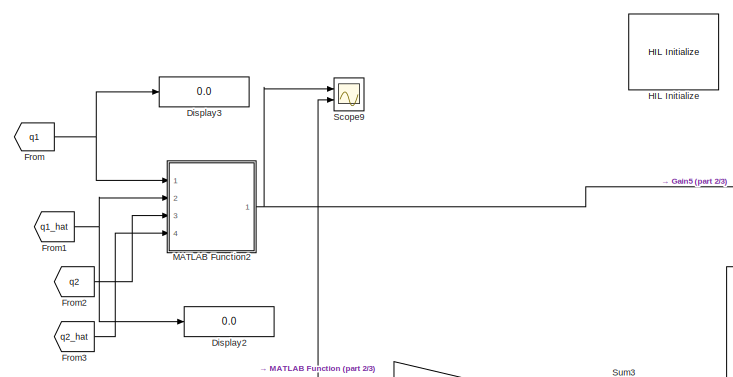
[diagram: root canvas - part 1/3, top left region]
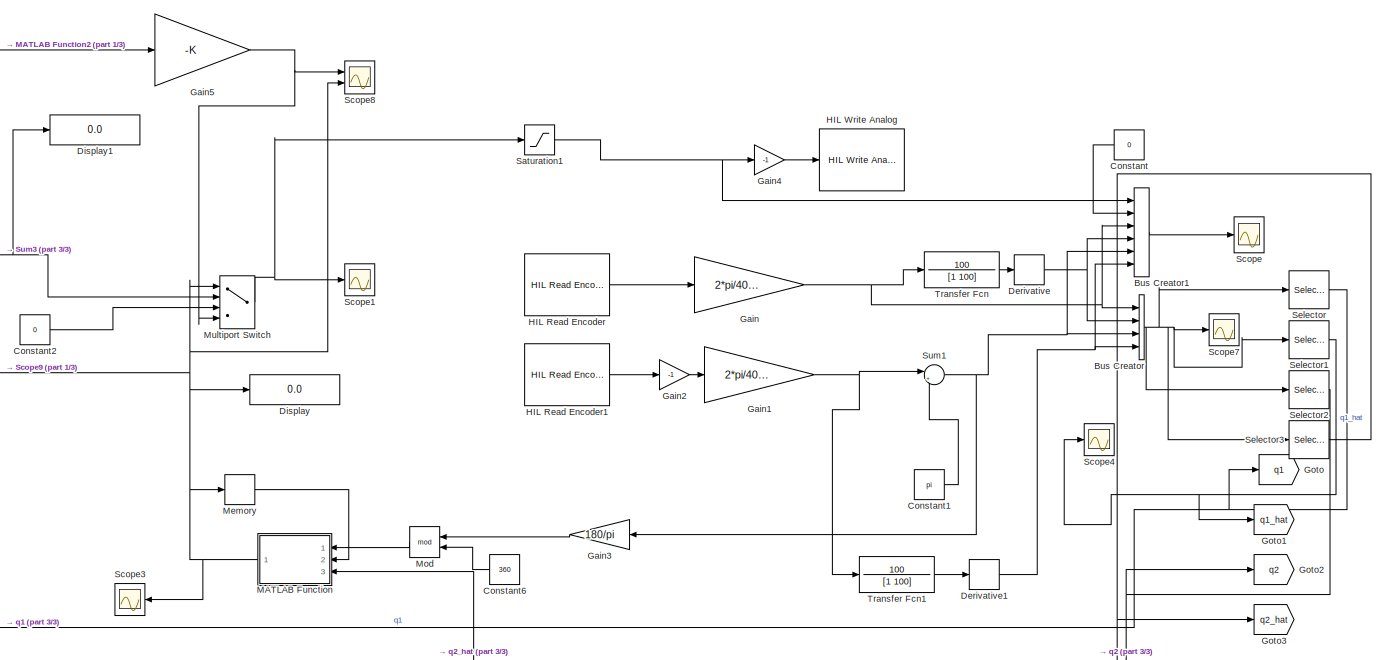
[diagram: root canvas - part 2/3, middle right region]
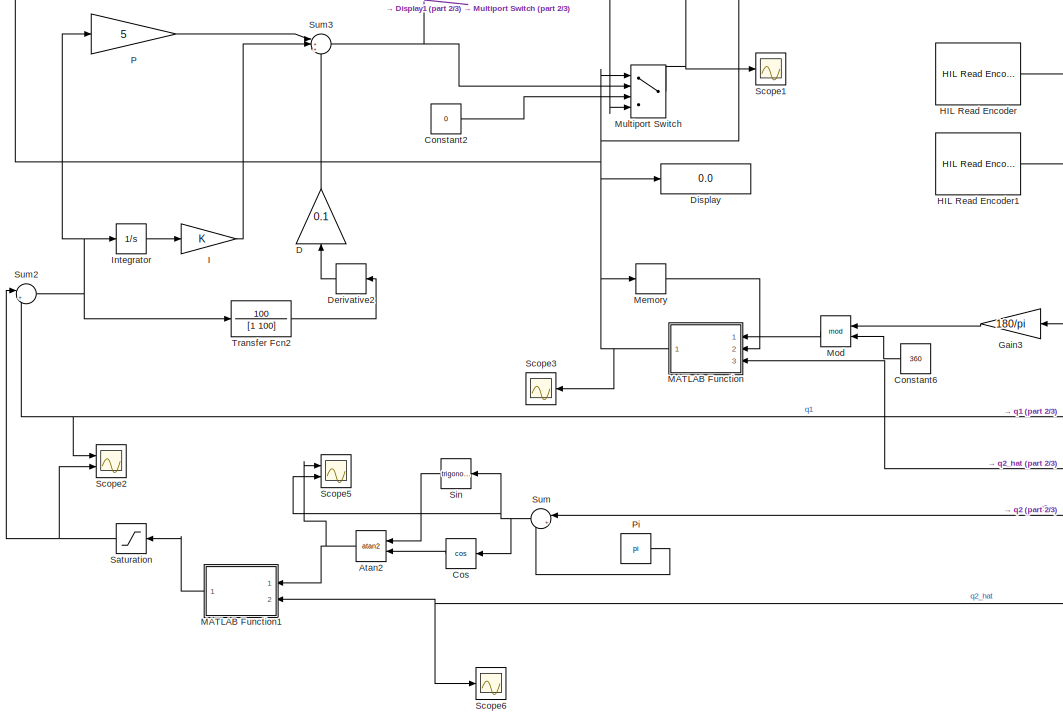
[diagram: root canvas - part 3/3, central region]
MODEL slx_17f5199e07ab
KIND model
CONFIG AbsTol = auto
CONFIG EnableMultiTasking = off
CONFIG FixedStep = 0.001
CONFIG MaxStep = auto
CONFIG MinStep = auto
CONFIG RelTol = 1e-3
CONFIG SampleTimeConstraint = Unconstrained
CONFIG SolverName = ode3
CONFIG StartTime = 0.0
CONFIG StopTime = 100
BLOCK [Trigonometry] Atan2
  Operator = atan2
  Ports = [2, 1]
BLOCK [BusCreator] Bus Creator
  DisplayOption = bar
  InheritFromInputs = on
  Inputs = 4
  Ports = [4, 1]
BLOCK [BusCreator] Bus Creator1
  DisplayOption = bar
  InheritFromInputs = on
  Inputs = 6
  Ports = [6, 1]
BLOCK [Constant] Constant
  Value = 0
BLOCK [Constant] Constant1
  Value = pi
BLOCK [Constant] Constant2
  Value = 0
BLOCK [Constant] Constant6
  Value = 360
BLOCK [Trigonometry] Cos
  Operator = cos
  Ports = [1, 1]
BLOCK [Gain] D
  Gain = 0.1
  NameLocation = left
BLOCK [Derivative] Derivative
BLOCK [Derivative] Derivative1
BLOCK [Derivative] Derivative2
BLOCK [Display] Display
  Decimation = 1
  Ports = [1]
BLOCK [Display] Display1
  Decimation = 1
  Ports = [1]
BLOCK [Display] Display2
  Decimation = 1
  Ports = [1]
BLOCK [Display] Display3
  Decimation = 1
  Ports = [1]
BLOCK [From] From
  GotoTag = q1
BLOCK [From] From1
  GotoTag = q1_hat
BLOCK [From] From2
  GotoTag = q2
BLOCK [From] From3
  GotoTag = q2_hat
BLOCK [Gain] Gain
  Gain = 2*pi/4096
BLOCK [Gain] Gain1
  Gain = 2*pi/4096
BLOCK [Gain] Gain2
  Gain = -1
BLOCK [Gain] Gain3
  Gain = 180/pi
BLOCK [Gain] Gain4
  Gain = -1
BLOCK [Gain] Gain5
  Gain = -K
  Multiplication = Matrix(K*u)
BLOCK [Goto] Goto
  GotoTag = q1
BLOCK [Goto] Goto1
  GotoTag = q1_hat
BLOCK [Goto] Goto2
  GotoTag = q2
BLOCK [Goto] Goto3
  GotoTag = q2_hat
BLOCK [Reference] HIL Initialize  REF=quarc_library/Data Acquisition/Generic/Configuration/HIL Initialize
  AttributesFormatString = %<object_name> (%<board_type>-%<board_number>)
  Ports = []
  SourceBlock = quarc_library/Data Acquisition/Generic/Configuration/HIL Initialize
  SourceProductName = QUARC Targets
  SourceType = HIL Initialize
  UserDataPersistent = on
BLOCK [Reference] HIL Read Encoder  REF=quarc_library/Data Acquisition/Generic/Immediate I//O/HIL Read Encoder
  AttributesFormatString = (%<object_name>)
  Ports = [0, 1]
  SourceBlock = quarc_library/Data Acquisition/Generic/Immediate I//O/HIL Read Encoder
  SourceProductName = QUARC Targets
  SourceType = HIL Read Encoder
  UserDataPersistent = on
BLOCK [Reference] HIL Read Encoder1  REF=quarc_library/Data Acquisition/Generic/Immediate I//O/HIL Read Encoder
  AttributesFormatString = (%<object_name>)
  Ports = [0, 1]
  SourceBlock = quarc_library/Data Acquisition/Generic/Immediate I//O/HIL Read Encoder
  SourceProductName = QUARC Targets
  SourceType = HIL Read Encoder
  UserDataPersistent = on
BLOCK [Reference] HIL Write Analog  REF=quarc_library/Data Acquisition/Generic/Immediate I//O/HIL Write Analog
  AttributesFormatString = (%<object_name>)
  Ports = [1]
  SourceBlock = quarc_library/Data Acquisition/Generic/Immediate I//O/HIL Write Analog
  SourceProductName = QUARC Targets
  SourceType = HIL Write Analog
  UserDataPersistent = on
BLOCK [Gain] I
BLOCK [Integrator] Integrator
  Ports = [1, 1]
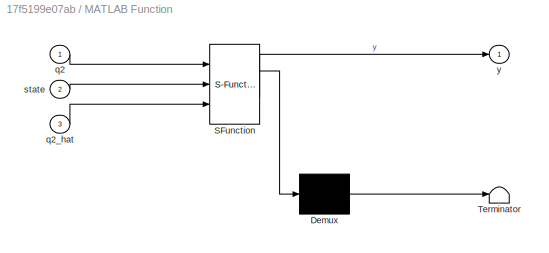
BLOCK [SubSystem] MATLAB Function
  ErrorFcn = Stateflow.Translate.translate
  PermitHierarchicalResolution = ExplicitOnly
  Ports = [3, 1]
  RequestExecContextInheritance = off
  SFBlockType = MATLAB Function
  TreatAsAtomicUnit = on
BLOCK [Demux] MATLAB Function/ Demux 
  Outputs = 1
  Ports = [1, 1]
BLOCK [S-Function] MATLAB Function/ SFunction 
  EnableBusSupport = off
  FunctionName = sf_sfun
  PortCounts = [3 2]
  Ports = [3, 2]
  SFcnIsStateOwnerBlock = off
  SFunctionDeploymentMode = off
  Tag = Stateflow S-Function 2
BLOCK [Terminator] MATLAB Function/ Terminator 
BLOCK [Inport] MATLAB Function/q2
BLOCK [Inport] MATLAB Function/q2_hat
  Port = 3
BLOCK [Inport] MATLAB Function/state
  Port = 2
BLOCK [Outport] MATLAB Function/y
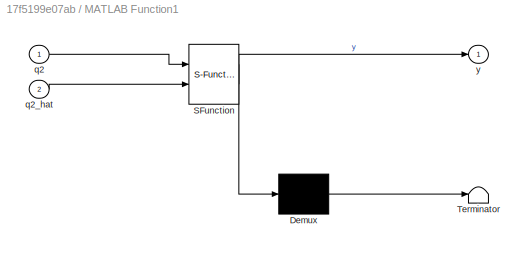
BLOCK [SubSystem] MATLAB Function1
  AttributesFormatString = %<Tag>
  ErrorFcn = Stateflow.Translate.translate
  PermitHierarchicalResolution = ExplicitOnly
  Ports = [2, 1]
  RequestExecContextInheritance = off
  SFBlockType = MATLAB Function
  Tag = Desired
  TreatAsAtomicUnit = on
BLOCK [Demux] MATLAB Function1/ Demux 
  Outputs = 1
  Ports = [1, 1]
BLOCK [S-Function] MATLAB Function1/ SFunction 
  EnableBusSupport = off
  FunctionName = sf_sfun
  PortCounts = [2 2]
  Ports = [2, 2]
  SFcnIsStateOwnerBlock = off
  SFunctionDeploymentMode = off
  Tag = Stateflow S-Function 1
BLOCK [Terminator] MATLAB Function1/ Terminator 
BLOCK [Inport] MATLAB Function1/q2
BLOCK [Inport] MATLAB Function1/q2_hat
  Port = 2
BLOCK [Outport] MATLAB Function1/y
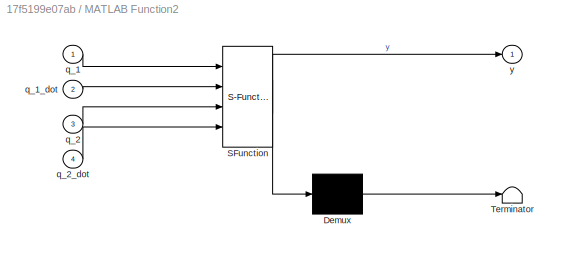
BLOCK [SubSystem] MATLAB Function2
  ErrorFcn = Stateflow.Translate.translate
  PermitHierarchicalResolution = ExplicitOnly
  Ports = [4, 1]
  RequestExecContextInheritance = off
  SFBlockType = MATLAB Function
  TreatAsAtomicUnit = on
BLOCK [Demux] MATLAB Function2/ Demux 
  Outputs = 1
  Ports = [1, 1]
BLOCK [S-Function] MATLAB Function2/ SFunction 
  EnableBusSupport = off
  FunctionName = sf_sfun
  PortCounts = [4 2]
  Ports = [4, 2]
  SFcnIsStateOwnerBlock = off
  SFunctionDeploymentMode = off
  Tag = Stateflow S-Function 3
BLOCK [Terminator] MATLAB Function2/ Terminator 
BLOCK [Inport] MATLAB Function2/q_1
BLOCK [Inport] MATLAB Function2/q_1_dot
  Port = 2
BLOCK [Inport] MATLAB Function2/q_2
  Port = 3
BLOCK [Inport] MATLAB Function2/q_2_dot
  Port = 4
BLOCK [Outport] MATLAB Function2/y
BLOCK [Memory] Memory
  InitialCondition = 1
BLOCK [Math] Mod
  Operator = mod
  Ports = [2, 1]
BLOCK [MultiPortSwitch] Multiport Switch
  InputSameDT = off
  Ports = [4, 1]
  SaturateOnIntegerOverflow = off
BLOCK [Gain] P
  Gain = 5
BLOCK [Constant] Pi
  OutDataTypeStr = Inherit: Inherit via back propagation
  Value = pi
BLOCK [Saturate] Saturation
  LowerLimit = -0.8
  UpperLimit = 0.8
BLOCK [Saturate] Saturation1
  LowerLimit = -10
  UpperLimit = 10
BLOCK [Scope] Scope
  Floating = off
  NumInputPorts = 1
  Ports = [1]
  ScopeSpecificationString = Simulink.scopes.TimeScopeBlockCfg('CurrentConfiguration', extmgr.ConfigurationSet(extmgr.Configuration('Core','General UI',true),extmgr.Configuration('Core','Source UI',true),extmgr.Configuration('Sources','WiredSimulink',true,'DataLogging',true,'DataLoggingVariableName','ScopeData1','DataLoggingSaveFormat','Array'),extmgr.Configuration('Visuals','Time Domain',true,'SerializedDisplays',{struct('Mi...<+1525ch>
BLOCK [Scope] Scope1
  Floating = off
  NumInputPorts = 1
  Ports = [1]
  ScopeSpecificationString = Simulink.scopes.TimeScopeBlockCfg('CurrentConfiguration', extmgr.ConfigurationSet(extmgr.Configuration('Core','General UI',true),extmgr.Configuration('Core','Source UI',true),extmgr.Configuration('Sources','WiredSimulink',true,'DataLoggingVariableName','ScopeData2'),extmgr.Configuration('Visuals','Time Domain',true,'SerializedDisplays',{struct('MinYLimReal','-49.80571','MaxYLimReal','49.06084','YL...<+1410ch>
BLOCK [Scope] Scope2
  Floating = off
  NumInputPorts = 2
  Ports = [2]
  ScopeSpecificationString = Simulink.scopes.TimeScopeBlockCfg('CurrentConfiguration', extmgr.ConfigurationSet(extmgr.Configuration('Core','General UI',true),extmgr.Configuration('Core','Source UI',true),extmgr.Configuration('Sources','WiredSimulink',true,'DataLoggingVariableName','ScopeData1'),extmgr.Configuration('Visuals','Time Domain',true,'SerializedDisplays',{struct('MinYLimReal','-2.2841','MaxYLimReal','2.16445','YLabe...<+1461ch>
BLOCK [Scope] Scope3
  Floating = off
  NumInputPorts = 1
  Ports = [1]
  ScopeSpecificationString = Simulink.scopes.TimeScopeBlockCfg('CurrentConfiguration', extmgr.ConfigurationSet(extmgr.Configuration('Core','General UI',true),extmgr.Configuration('Core','Source UI',true),extmgr.Configuration('Sources','WiredSimulink',true,'DataLoggingVariableName','ScopeData3'),extmgr.Configuration('Visuals','Time Domain',true,'SerializedDisplays',{struct('MinYLimReal','0.75','MaxYLimReal','3.25','YLabelReal'...<+1396ch>
BLOCK [Scope] Scope4
  Floating = off
  NumInputPorts = 1
  Ports = [1]
  ScopeSpecificationString = Simulink.scopes.TimeScopeBlockCfg('CurrentConfiguration', extmgr.ConfigurationSet(extmgr.Configuration('Core','General UI',true),extmgr.Configuration('Core','Source UI',true),extmgr.Configuration('Sources','WiredSimulink',true,'DataLoggingVariableName','ScopeData1'),extmgr.Configuration('Visuals','Time Domain',true),extmgr.Configuration('Tools','Plot Navigation',true),extmgr.Configuration('Tools',...<+40ch>
BLOCK [Scope] Scope5
  Floating = off
  NumInputPorts = 2
  Ports = [2]
  ScopeSpecificationString = Simulink.scopes.TimeScopeBlockCfg('CurrentConfiguration', extmgr.ConfigurationSet(extmgr.Configuration('Core','General UI',true),extmgr.Configuration('Core','Source UI',true),extmgr.Configuration('Sources','WiredSimulink',true,'DataLoggingVariableName','ScopeData2'),extmgr.Configuration('Visuals','Time Domain',true,'SerializedDisplays',{struct('MinYLimReal','-16.84368','MaxYLimReal','5.35877','YLa...<+1446ch>
BLOCK [Scope] Scope6
  Floating = off
  NumInputPorts = 1
  Ports = [1]
  ScopeSpecificationString = Simulink.scopes.TimeScopeBlockCfg('CurrentConfiguration', extmgr.ConfigurationSet(extmgr.Configuration('Core','General UI',true),extmgr.Configuration('Core','Source UI',true),extmgr.Configuration('Sources','WiredSimulink',true,'DataLoggingVariableName','ScopeData3'),extmgr.Configuration('Visuals','Time Domain',true,'SerializedDisplays',{struct('MinYLimReal','-3.97111','MaxYLimReal','3.9294','YLabe...<+1363ch>
BLOCK [Scope] Scope7
  Floating = off
  NumInputPorts = 1
  Ports = [1]
  ScopeSpecificationString = Simulink.scopes.TimeScopeBlockCfg('CurrentConfiguration', extmgr.ConfigurationSet(extmgr.Configuration('Core','General UI',true),extmgr.Configuration('Core','Source UI',true),extmgr.Configuration('Sources','WiredSimulink',true,'DataLoggingVariableName','ScopeData4'),extmgr.Configuration('Visuals','Time Domain',true,'SerializedDisplays',{struct('MinYLimReal','-13.56979','MaxYLimReal','7.30961','YLa...<+1403ch>
BLOCK [Scope] Scope8
  Floating = off
  NumInputPorts = 2
  Ports = [2]
  ScopeSpecificationString = Simulink.scopes.TimeScopeBlockCfg('CurrentConfiguration', extmgr.ConfigurationSet(extmgr.Configuration('Core','General UI',true),extmgr.Configuration('Core','Source UI',true),extmgr.Configuration('Sources','WiredSimulink',true,'DataLoggingVariableName','ScopeData1'),extmgr.Configuration('Visuals','Time Domain',true,'SerializedDisplays',{struct('MinYLimReal','-53.33145','MaxYLimReal','54.47923','YL...<+1436ch>
BLOCK [Scope] Scope9
  Floating = off
  NumInputPorts = 2
  Ports = [2]
  ScopeSpecificationString = Simulink.scopes.TimeScopeBlockCfg('CurrentConfiguration', extmgr.ConfigurationSet(extmgr.Configuration('Core','General UI',true),extmgr.Configuration('Core','Source UI',true),extmgr.Configuration('Sources','WiredSimulink',true,'DataLoggingVariableName','ScopeData1'),extmgr.Configuration('Visuals','Time Domain',true,'SerializedDisplays',{struct('MinYLimReal','-0.20917','MaxYLimReal','2.96302','YLab...<+1400ch>
BLOCK [Selector] Selector
  IndexOptions = Index vector (dialog)
  Indices = 1
  InputPortWidth = 4
  OutputSizes = 1
  Ports = [1, 1]
BLOCK [Selector] Selector1
  IndexOptions = Index vector (dialog)
  Indices = 2
  InputPortWidth = 4
  OutputSizes = 1
  Ports = [1, 1]
BLOCK [Selector] Selector2
  IndexOptions = Index vector (dialog)
  Indices = 3
  InputPortWidth = 4
  OutputSizes = 1
  Ports = [1, 1]
BLOCK [Selector] Selector3
  IndexOptions = Index vector (dialog)
  Indices = 4
  InputPortWidth = 4
  OutputSizes = 1
  Ports = [1, 1]
BLOCK [Trigonometry] Sin
  Ports = [1, 1]
BLOCK [Sum] Sum
  Inputs = |+-
  Ports = [2, 1]
BLOCK [Sum] Sum1
  Inputs = |++
  Ports = [2, 1]
BLOCK [Sum] Sum2
  Inputs = |+-
  Ports = [2, 1]
BLOCK [Sum] Sum3
  Inputs = |+++
  Ports = [3, 1]
BLOCK [TransferFcn] Transfer Fcn
  Denominator = [1 100]
  NameLocation = top
  Numerator = 100
BLOCK [TransferFcn] Transfer Fcn1
  Denominator = [1 100]
  NameLocation = top
  Numerator = 100
BLOCK [TransferFcn] Transfer Fcn2
  Denominator = [1 100]
  NameLocation = top
  Numerator = 100
NET Atan2:1 -> MATLAB Function1:1, Scope5:1
LINE Bus Creator1:1 -> Scope:1
NET Bus Creator:1 -> Scope7:1, Selector1:1, Selector2:1, Selector3:1, Selector:1
LINE Constant1:1 -> Sum1:2
LINE Constant2:1 -> Multiport Switch:3
LINE Constant6:1 -> Mod:2
LINE Constant:1 -> Bus Creator1:2
LINE Cos:1 -> Atan2:2
LINE D:1 -> Sum3:3
NET Derivative1:1 -> Bus Creator1:6, Bus Creator:4
LINE Derivative2:1 -> D:1
NET Derivative:1 -> Bus Creator1:4, Bus Creator:2
NET From1:1 -> Display2:1, MATLAB Function2:2
LINE From2:1 -> MATLAB Function2:3
LINE From3:1 -> MATLAB Function2:4
NET From:1 -> Display3:1, MATLAB Function2:1
NET Gain1:1 -> Sum1:1, Transfer Fcn1:1
LINE Gain2:1 -> Gain1:1
LINE Gain3:1 -> Mod:1
LINE Gain4:1 -> HIL Write Analog:1
NET Gain5:1 -> Multiport Switch:4, Scope8:1
NET Gain:1 -> Bus Creator1:3, Bus Creator:1, Transfer Fcn:1
LINE HIL Read Encoder1:1 -> Gain2:1
LINE HIL Read Encoder:1 -> Gain:1
LINE I:1 -> Sum3:2
LINE Integrator:1 -> I:1
LINE MATLAB Function1:1 -> Saturation:1
NET MATLAB Function2:1 -> Gain5:1, Scope9:1
NET MATLAB Function:1 -> Display:1, Memory:1, Multiport Switch:1, Scope3:1, Scope8:2, Scope9:2
LINE Memory:1 -> MATLAB Function:2
LINE Mod:1 -> MATLAB Function:1
NET Multiport Switch:1 -> Saturation1:1, Scope1:1
LINE P:1 -> Sum3:1
LINE Pi:1 -> Sum:2
NET Saturation1:1 -> Bus Creator1:1, Gain4:1
NET Saturation:1 -> Scope2:2, Sum2:1
NET Selector1:1 -> Goto1:1, Scope4:1
NET Selector2:1 -> Goto2:1, Sum:1
NET Selector3:1 -> Goto3:1, MATLAB Function1:2, MATLAB Function:3, Scope6:1
NET Selector:1 -> Goto:1, Scope2:1, Sum2:2
LINE Sin:1 -> Atan2:1
NET Sum1:1 -> Bus Creator1:5, Bus Creator:3, Gain3:1
NET Sum2:1 -> Integrator:1, P:1, Transfer Fcn2:1
NET Sum3:1 -> Display1:1, Multiport Switch:2
NET Sum:1 -> Cos:1, Scope5:2, Sin:1
LINE Transfer Fcn1:1 -> Derivative1:1
LINE Transfer Fcn2:1 -> Derivative2:1
LINE Transfer Fcn:1 -> Derivative:1
note: NET lines group one-source signal fan-out (src -> all destinations, sorted); 1:1 wires keep LINE
CHART MATLAB Function1 states=1 transitions=1
  STATE_LABEL 'eML_blk_kernel()'
  STATE_LABEL 'SCRIPT:\nfunction y = fcn(q2,q2_hat)\nk1 = 1;\nk2 = 0;\ny = k1*q2+k2*q2_hat;\n'
CHART MATLAB Function states=1 transitions=1
  STATE_LABEL 'eML_blk_kernel()'
  STATE_LABEL 'SCRIPT:\nfunction y = fcn(q2,state,q2_hat)\n% in state 1\nif (q2 > 170) && (q2 < 190) && (state == 2) &&(abs(q2_hat)<0.5)\n    y = 1;\nelseif ((q2 < 20) && (q2 >0) && (state ==1)) || ((q2 >340) && (q2 <360) && (state ==1))\n    y = 3;\nelseif ((q2 > 20) && (state ==3))&& (q2 < 340)\n    y = 2;\nelse \n    y =state;\nend\n\n%atan(sin(q2), cos(q2))'
CHART MATLAB Function2 states=1 transitions=1
  STATE_LABEL 'eML_blk_kernel()'
  STATE_LABEL 'SCRIPT:\nfunction y = fcn(q_1,q_1_dot,q_2,q_2_dot)\nq_2 = atan2(sin(q_2),cos(q_2));\nq_hat = [q_1;q_1_dot;q_2;q_2_dot];\ny = q_hat;\n'
CHART  states=0 transitions=0
CHART  states=0 transitions=0
CHART  states=0 transitions=0
